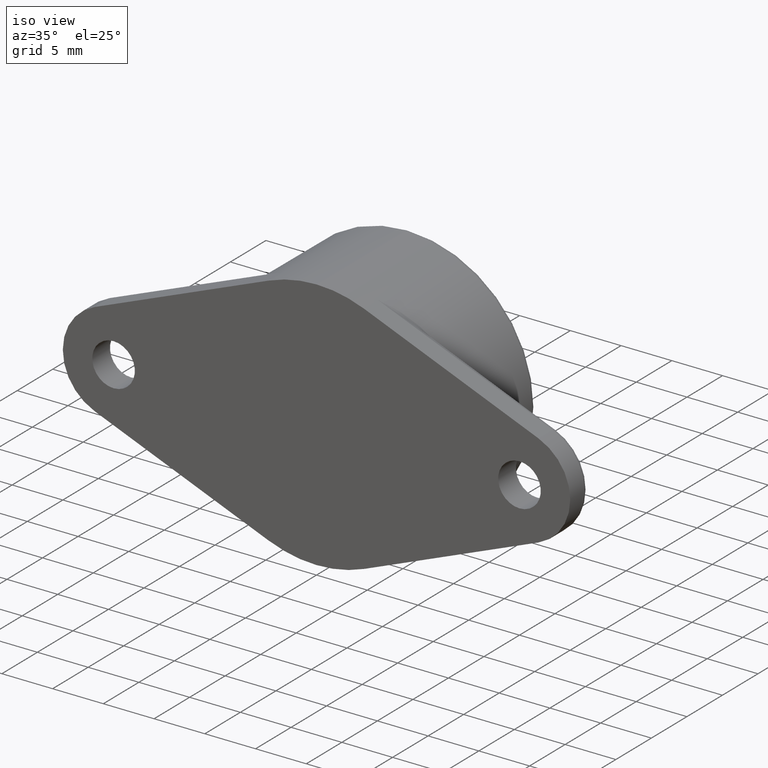
[diagram: clean part render]
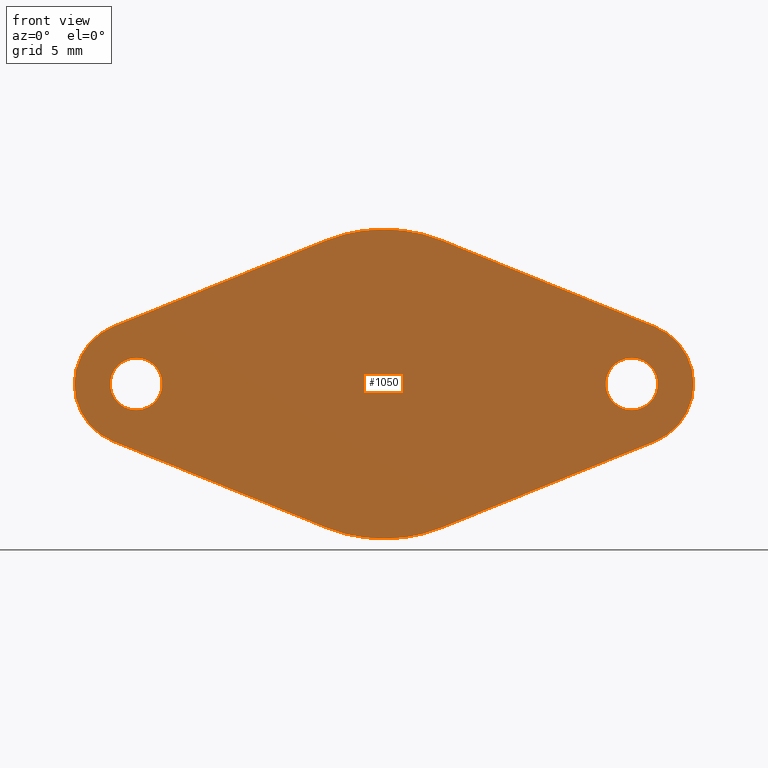
[diagram: tour spotlight — one face highlighted and labeled with its STEP entity id]
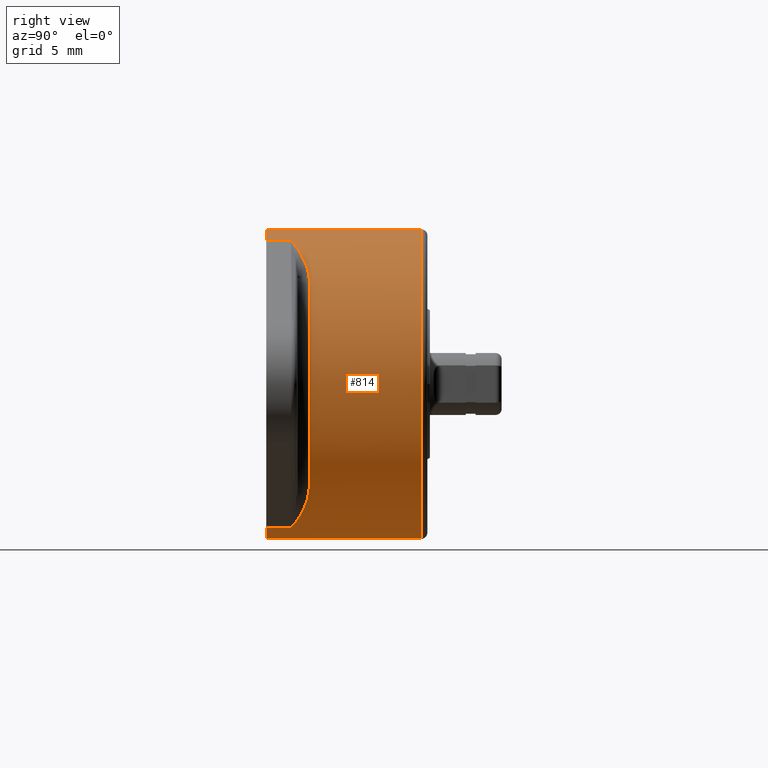
[diagram: tour spotlight — one face highlighted and labeled with its STEP entity id]
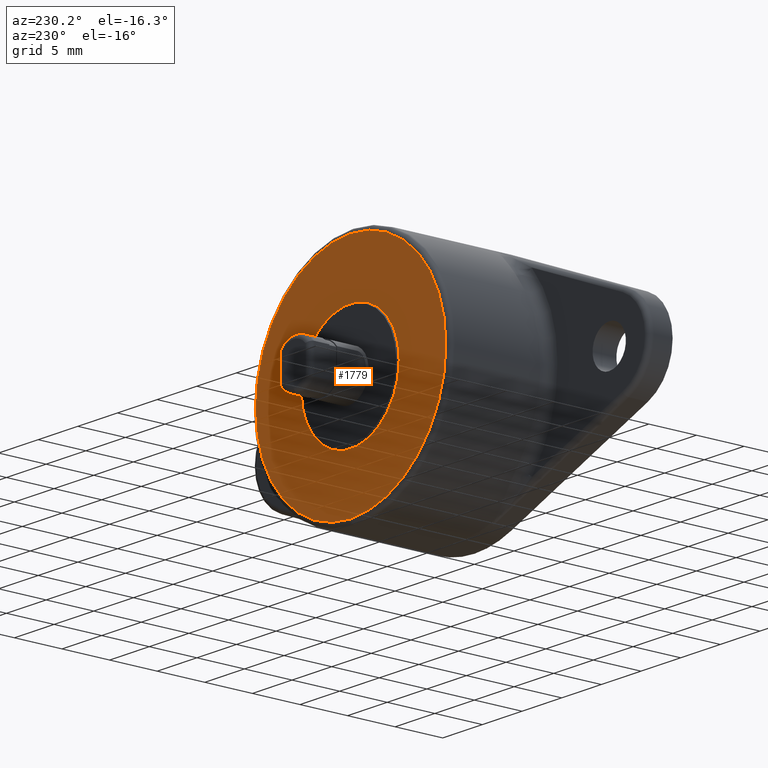
[diagram: tour spotlight — one face highlighted and labeled with its STEP entity id]
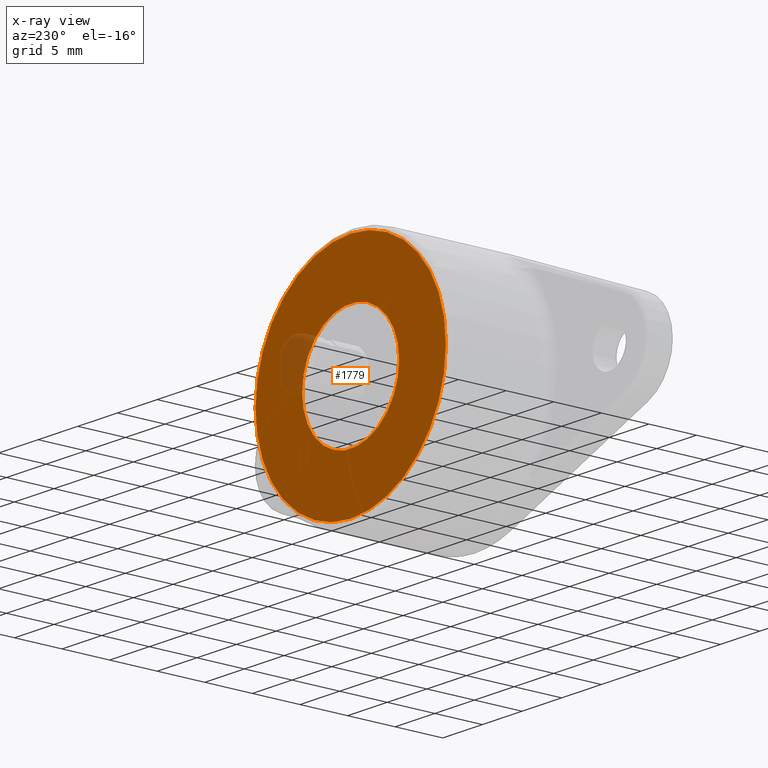
[diagram: x-ray of the same camera — body ghosted, this tour face saturated]
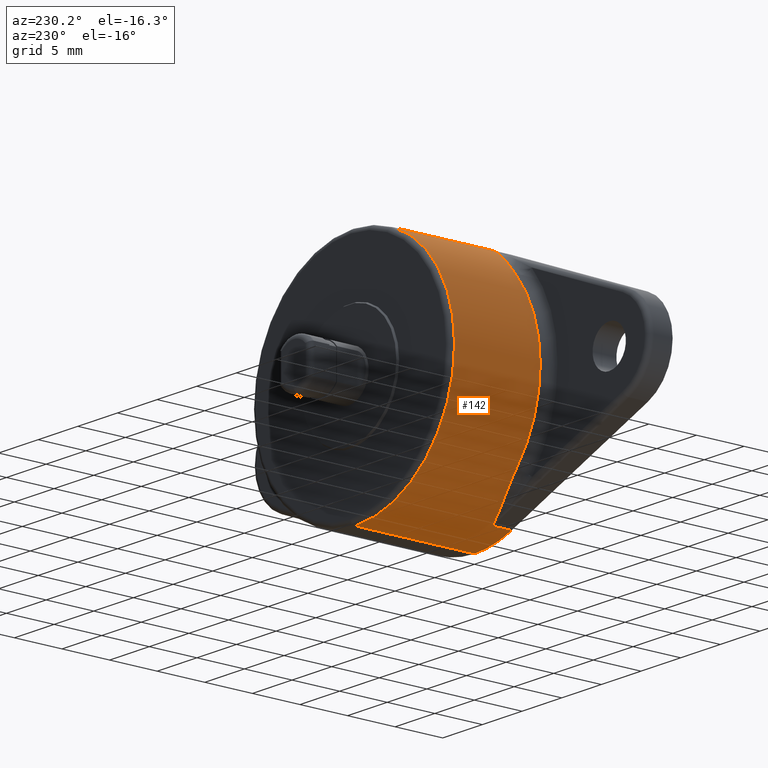
[diagram: tour spotlight — one face highlighted and labeled with its STEP entity id]
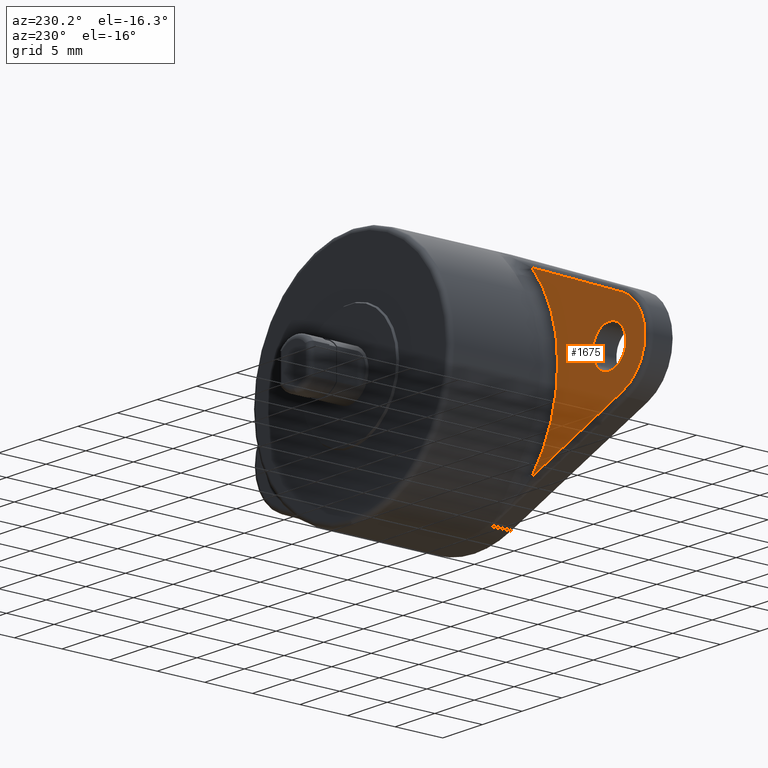
[diagram: tour spotlight — one face highlighted and labeled with its STEP entity id]
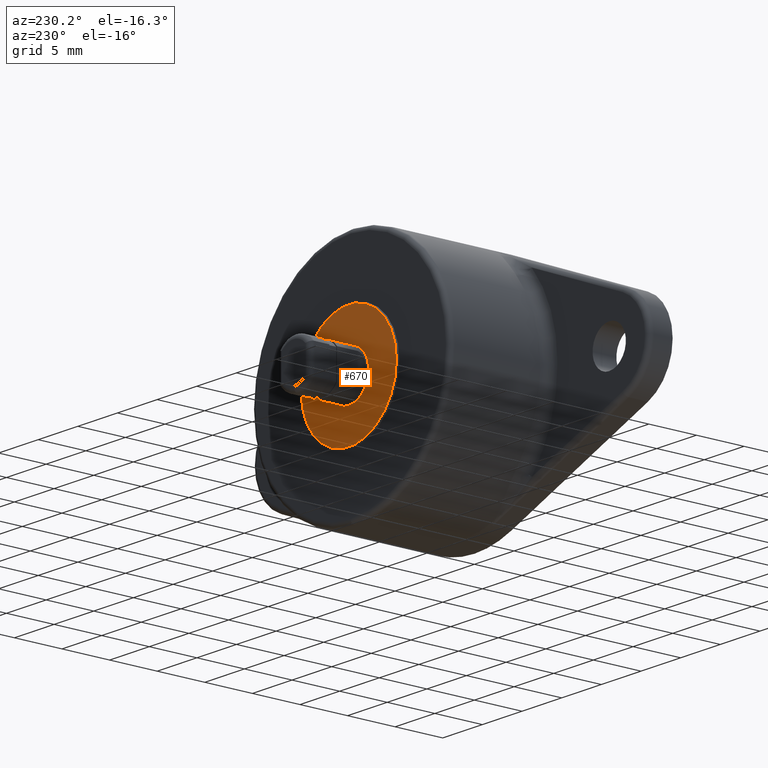
[diagram: tour spotlight — one face highlighted and labeled with its STEP entity id]
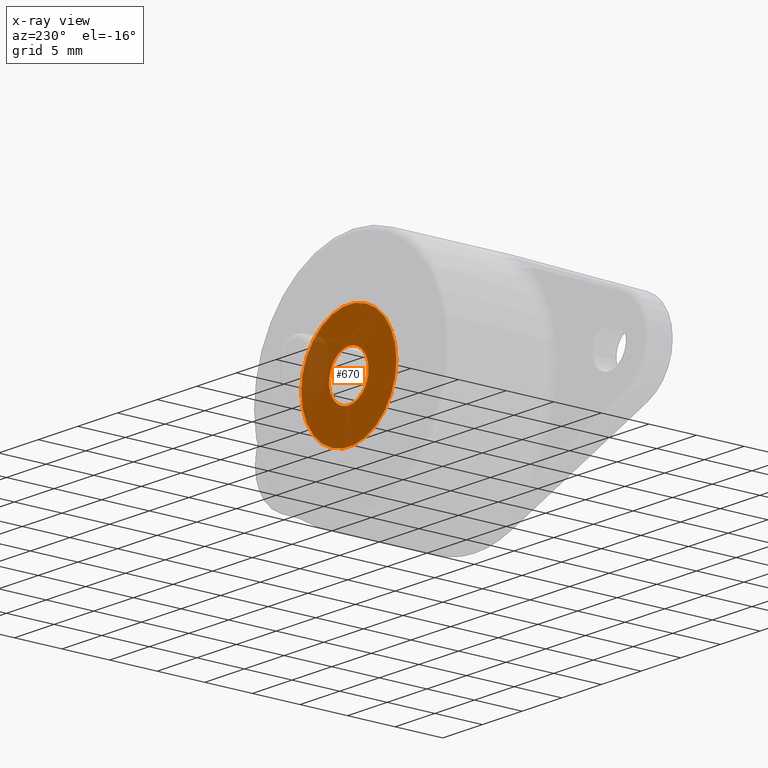
[diagram: x-ray of the same camera — body ghosted, this tour face saturated]
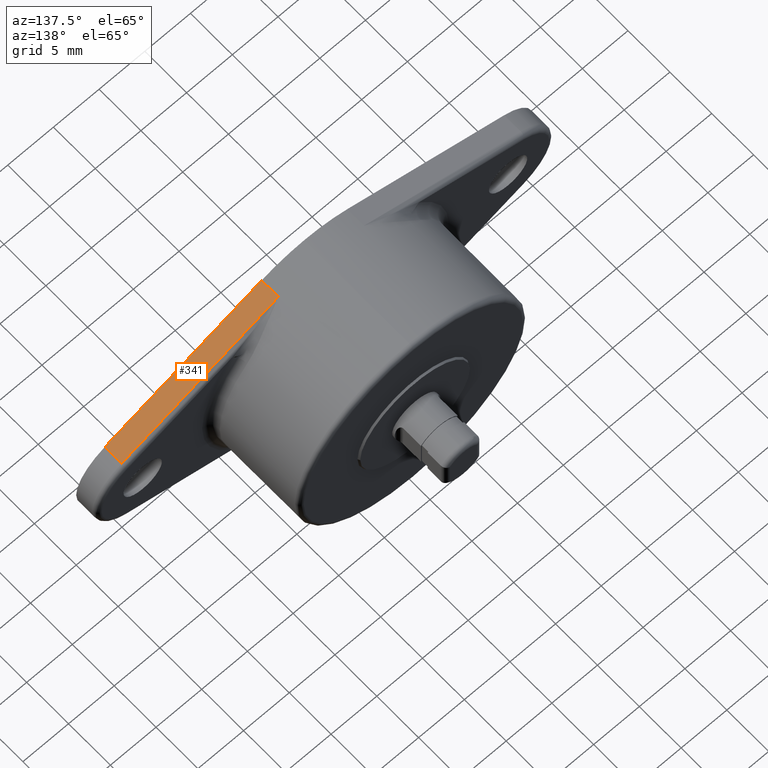
[diagram: tour spotlight — one face highlighted and labeled with its STEP entity id]
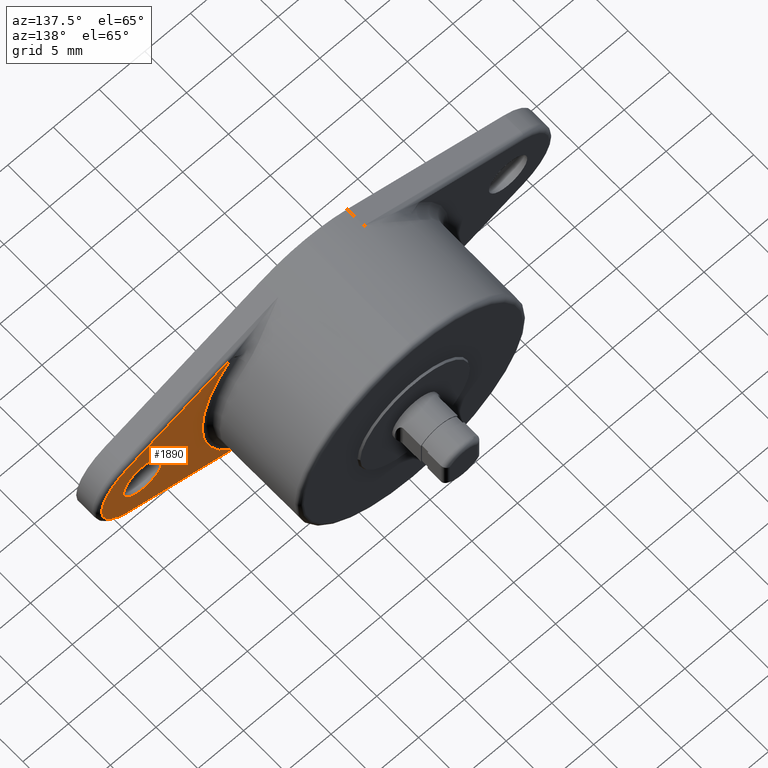
[diagram: tour spotlight — one face highlighted and labeled with its STEP entity id]
A machine part: a face-by-face anatomy tour. The part has 59 B-rep faces; the first image is the clean iso view, then the 8 largest visible faces are spotlighted one at a time (largest first), each with its STEP entity span.

Face 1 — front view, entity #1050. In plain terms, the highlighted planar face has unit normal (-0, 1, 0).
Definition (entity closure, byte-faithful):
#1 = CARTESIAN_POINT ( 'NONE',  ( -4.687500000031076500, 4.336808689942017700E-016, -11.58781013600035000 ) ) ;
#9 = CARTESIAN_POINT ( 'NONE',  ( 21.87500000004672200, 4.336808689942017700E-016, -4.635124053996904100 ) ) ;
#32 = CARTESIAN_POINT ( 'NONE',  ( -20.00000000000000000, -1.298125607096191200E-015, -0.0000000000000000000 ) ) ;
#35 = ORIENTED_EDGE ( 'NONE', *, *, #865, .F. ) ;
#71 = CARTESIAN_POINT ( 'NONE',  ( -20.00000000000000000, -1.298125607096191200E-015, 2.099999999999987200 ) ) ;
#101 = AXIS2_PLACEMENT_3D ( 'NONE', #1189, #271, #1348 ) ;
#103 = DIRECTION ( 'NONE',  ( 0.0000000000000000000, 0.0000000000000000000, 1.000000000000000000 ) ) ;
#158 = AXIS2_PLACEMENT_3D ( 'NONE', #1077, #165, #1235 ) ;
#164 = ORIENTED_EDGE ( 'NONE', *, *, #1474, .T. ) ;
#165 = DIRECTION ( 'NONE',  ( 0.0000000000000000000, -1.000000000000000000, 0.0000000000000000000 ) ) ;
#184 = DIRECTION ( 'NONE',  ( 0.0000000000000000000, -1.000000000000000000, 0.0000000000000000000 ) ) ;
#192 = DIRECTION ( 'NONE',  ( 0.0000000000000000000, 0.0000000000000000000, -1.000000000000000000 ) ) ;
#202 = AXIS2_PLACEMENT_3D ( 'NONE', #1093, #184, #1256 ) ;
#216 = CIRCLE ( 'NONE', #505, 12.49999999996701300 ) ;
#221 = EDGE_LOOP ( 'NONE', ( #1993, #599, #252, #733, #1629, #935, #1774, #164, #1898, #1952 ) ) ;
#222 = EDGE_LOOP ( 'NONE', ( #421, #35 ) ) ;
#241 = CARTESIAN_POINT ( 'NONE',  ( 20.00000000006817700, 4.336808689942017700E-016, 1.239813550230149600E-010 ) ) ;
#252 = ORIENTED_EDGE ( 'NONE', *, *, #1062, .T. ) ;
#271 = DIRECTION ( 'NONE',  ( 0.0000000000000000000, -1.000000000000000000, 0.0000000000000000000 ) ) ;
#282 = CARTESIAN_POINT ( 'NONE',  ( 20.00000000000000000, 4.336808689942017700E-016, 2.099999999999987200 ) ) ;
#293 = CIRCLE ( 'NONE', #1681, 4.999999999700959200 ) ;
#295 = EDGE_CURVE ( 'NONE', #918, #1637, #1834, .T. ) ;
#334 = CIRCLE ( 'NONE', #873, 12.49999999996701300 ) ;
#340 = DIRECTION ( 'NONE',  ( -0.0000000000000000000, 1.000000000000000000, -0.0000000000000000000 ) ) ;
#345 = CARTESIAN_POINT ( 'NONE',  ( -21.87499999993954000, 4.336808689942017700E-016, 4.635124054024458900 ) ) ;
#353 = EDGE_CURVE ( 'NONE', #1931, #1143, #611, .T. ) ;
#386 = DIRECTION ( 'NONE',  ( 0.0000000000000000000, 0.0000000000000000000, 1.000000000000000000 ) ) ;
#387 = VERTEX_POINT ( 'NONE', #1086 ) ;
#397 = EDGE_CURVE ( 'NONE', #780, #881, #515, .T. ) ;
#421 = ORIENTED_EDGE ( 'NONE', *, *, #511, .F. ) ;
#449 = EDGE_CURVE ( 'NONE', #547, #831, #1943, .T. ) ;
#501 = AXIS2_PLACEMENT_3D ( 'NONE', #1761, #836, #1906 ) ;
#505 = AXIS2_PLACEMENT_3D ( 'NONE', #509, #1590, #667 ) ;
#509 = CARTESIAN_POINT ( 'NONE',  ( 5.731678153250968000E-011, 4.336808689942017700E-016, 1.528555497919056500E-011 ) ) ;
#511 = EDGE_CURVE ( 'NONE', #387, #887, #725, .T. ) ;
#515 = CIRCLE ( 'NONE', #202, 4.999999999697704000 ) ;
#529 = VECTOR ( 'NONE', #1427, 1000.000000000000100 ) ;
#530 = CARTESIAN_POINT ( 'NONE',  ( -21.87499999988915500, 4.336808689942017700E-016, -4.635124054231659400 ) ) ;
#533 = CARTESIAN_POINT ( 'NONE',  ( 4.059162673905238300E-023, 4.336808689942017700E-016, 12.49999999998230000 ) ) ;
#547 = VERTEX_POINT ( 'NONE', #1265 ) ;
#566 = PLANE ( 'NONE',  #980 ) ;
#568 = VECTOR ( 'NONE', #928, 1000.000000000000100 ) ;
#595 = DIRECTION ( 'NONE',  ( -0.0000000000000000000, 1.000000000000000000, -0.0000000000000000000 ) ) ;
#599 = ORIENTED_EDGE ( 'NONE', *, *, #449, .T. ) ;
#609 = EDGE_CURVE ( 'NONE', #1637, #918, #875, .T. ) ;
#611 = LINE ( 'NONE', #9, #568 ) ;
#626 = EDGE_LOOP ( 'NONE', ( #770, #713 ) ) ;
#644 = CARTESIAN_POINT ( 'NONE',  ( 4.687500000145703900, 4.336808689942017700E-016, 11.58781013603092100 ) ) ;
#667 = DIRECTION ( 'NONE',  ( 0.0000000000000000000, 0.0000000000000000000, 1.000000000000000000 ) ) ;
#713 = ORIENTED_EDGE ( 'NONE', *, *, #295, .T. ) ;
#720 = AXIS2_PLACEMENT_3D ( 'NONE', #1266, #340, #1424 ) ;
#725 = CIRCLE ( 'NONE', #1893, 2.099999999999987200 ) ;
#733 = ORIENTED_EDGE ( 'NONE', *, *, #1874, .T. ) ;
#749 = FACE_BOUND ( 'NONE', #222, .T. ) ;
#770 = ORIENTED_EDGE ( 'NONE', *, *, #609, .T. ) ;
#778 = DIRECTION ( 'NONE',  ( 0.9270248108836969300, -0.0000000000000000000, -0.3750000000080612200 ) ) ;
#780 = VERTEX_POINT ( 'NONE', #922 ) ;
#807 = EDGE_CURVE ( 'NONE', #1346, #1931, #1813, .T. ) ;
#831 = VERTEX_POINT ( 'NONE', #644 ) ;
#836 = DIRECTION ( 'NONE',  ( -0.0000000000000000000, -1.000000000000000000, -0.0000000000000000000 ) ) ;
#844 = DIRECTION ( 'NONE',  ( -0.9270248108836971500, -0.0000000000000000000, 0.3750000000080608900 ) ) ;
#865 = EDGE_CURVE ( 'NONE', #887, #387, #1373, .T. ) ;
#866 = VECTOR ( 'NONE', #778, 1000.000000000000100 ) ;
#869 = DIRECTION ( 'NONE',  ( 0.0000000000000000000, -1.000000000000000000, 0.0000000000000000000 ) ) ;
#873 = AXIS2_PLACEMENT_3D ( 'NONE', #1794, #869, #1940 ) ;
#875 = CIRCLE ( 'NONE', #720, 2.099999999999987200 ) ;
#881 = VERTEX_POINT ( 'NONE', #530 ) ;
#887 = VERTEX_POINT ( 'NONE', #71 ) ;
#903 = EDGE_CURVE ( 'NONE', #881, #1488, #1692, .T. ) ;
#918 = VERTEX_POINT ( 'NONE', #1560 ) ;
#922 = CARTESIAN_POINT ( 'NONE',  ( -21.87499999993954300, 4.336808689942017700E-016, 4.635124054024457200 ) ) ;
#928 = DIRECTION ( 'NONE',  ( 0.9270248108796209600, -0.0000000000000000000, 0.3750000000181373200 ) ) ;
#935 = ORIENTED_EDGE ( 'NONE', *, *, #397, .T. ) ;
#980 = AXIS2_PLACEMENT_3D ( 'NONE', #1933, #1021, #103 ) ;
#1021 = DIRECTION ( 'NONE',  ( -0.0000000000000000000, 1.000000000000000000, 0.0000000000000000000 ) ) ;
#1035 = CARTESIAN_POINT ( 'NONE',  ( -4.687500000031075600, 4.336808689942017700E-016, -11.58781013600035000 ) ) ;
#1050 = ADVANCED_FACE ( 'NONE', ( #749, #1200, #1968 ), #566, .F. ) ;
#1062 = EDGE_CURVE ( 'NONE', #831, #1389, #334, .T. ) ;
#1077 = CARTESIAN_POINT ( 'NONE',  ( 5.731678153250968000E-011, 4.336808689942017700E-016, 1.528555497919056500E-011 ) ) ;
#1086 = CARTESIAN_POINT ( 'NONE',  ( -20.00000000000000000, -1.298125607096191200E-015, -2.099999999999987200 ) ) ;
#1093 = CARTESIAN_POINT ( 'NONE',  ( -19.99999999996221300, 4.336808689942017700E-016, -9.341074212250288200E-011 ) ) ;
#1099 = DIRECTION ( 'NONE',  ( -0.0000000000000000000, -1.000000000000000000, -0.0000000000000000000 ) ) ;
#1143 = VERTEX_POINT ( 'NONE', #1184 ) ;
#1159 = AXIS2_PLACEMENT_3D ( 'NONE', #1513, #595, #1672 ) ;
#1184 = CARTESIAN_POINT ( 'NONE',  ( 21.87500000004672200, 4.336808689942017700E-016, -4.635124053996904100 ) ) ;
#1189 = CARTESIAN_POINT ( 'NONE',  ( 5.731678153250968000E-011, 4.336808689942017700E-016, 1.528555497919056500E-011 ) ) ;
#1200 = FACE_BOUND ( 'NONE', #626, .T. ) ;
#1235 = DIRECTION ( 'NONE',  ( 0.0000000000000000000, 0.0000000000000000000, 1.000000000000000000 ) ) ;
#1256 = DIRECTION ( 'NONE',  ( 0.0000000000000000000, 0.0000000000000000000, 1.000000000000000000 ) ) ;
#1265 = CARTESIAN_POINT ( 'NONE',  ( 21.87499999999633700, 4.336808689942017700E-016, 4.635124054265249400 ) ) ;
#1266 = CARTESIAN_POINT ( 'NONE',  ( 20.00000000000000000, 4.336808689942017700E-016, 0.0000000000000000000 ) ) ;
#1314 = DIRECTION ( 'NONE',  ( 0.0000000000000000000, -1.000000000000000000, 0.0000000000000000000 ) ) ;
#1346 = VERTEX_POINT ( 'NONE', #1432 ) ;
#1348 = DIRECTION ( 'NONE',  ( 0.0000000000000000000, 0.0000000000000000000, 1.000000000000000000 ) ) ;
#1371 = CARTESIAN_POINT ( 'NONE',  ( -4.687500000157030800, 4.336808689942017700E-016, 11.58781013597997000 ) ) ;
#1373 = CIRCLE ( 'NONE', #501, 2.099999999999987200 ) ;
#1389 = VERTEX_POINT ( 'NONE', #533 ) ;
#1424 = DIRECTION ( 'NONE',  ( 0.0000000000000000000, 0.0000000000000000000, 1.000000000000000000 ) ) ;
#1427 = DIRECTION ( 'NONE',  ( -0.9270248108796208500, -0.0000000000000000000, -0.3750000000181374900 ) ) ;
#1432 = CARTESIAN_POINT ( 'NONE',  ( 1.530808609604747900E-015, 4.336808689942017700E-016, -12.49999999995173100 ) ) ;
#1457 = CIRCLE ( 'NONE', #101, 12.49999999996701700 ) ;
#1474 = EDGE_CURVE ( 'NONE', #1488, #1346, #1457, .T. ) ;
#1488 = VERTEX_POINT ( 'NONE', #1035 ) ;
#1513 = CARTESIAN_POINT ( 'NONE',  ( 20.00000000000000000, 4.336808689942017700E-016, 0.0000000000000000000 ) ) ;
#1539 = VECTOR ( 'NONE', #844, 999.9999999999998900 ) ;
#1560 = CARTESIAN_POINT ( 'NONE',  ( 20.00000000000000000, 4.336808689942017700E-016, -2.099999999999987200 ) ) ;
#1590 = DIRECTION ( 'NONE',  ( 0.0000000000000000000, -1.000000000000000000, 0.0000000000000000000 ) ) ;
#1629 = ORIENTED_EDGE ( 'NONE', *, *, #1889, .T. ) ;
#1637 = VERTEX_POINT ( 'NONE', #282 ) ;
#1638 = VERTEX_POINT ( 'NONE', #1371 ) ;
#1672 = DIRECTION ( 'NONE',  ( 0.0000000000000000000, 0.0000000000000000000, 1.000000000000000000 ) ) ;
#1681 = AXIS2_PLACEMENT_3D ( 'NONE', #241, #1314, #386 ) ;
#1692 = LINE ( 'NONE', #1, #866 ) ;
#1755 = LINE ( 'NONE', #345, #529 ) ;
#1761 = CARTESIAN_POINT ( 'NONE',  ( -20.00000000000000000, -1.298125607096191200E-015, -0.0000000000000000000 ) ) ;
#1764 = EDGE_CURVE ( 'NONE', #1143, #547, #293, .T. ) ;
#1768 = CARTESIAN_POINT ( 'NONE',  ( 4.687500000145708300, 4.336808689942017700E-016, 11.58781013603091900 ) ) ;
#1774 = ORIENTED_EDGE ( 'NONE', *, *, #903, .T. ) ;
#1794 = CARTESIAN_POINT ( 'NONE',  ( 5.731678153250968000E-011, 4.336808689942017700E-016, 1.528555497919056500E-011 ) ) ;
#1805 = CARTESIAN_POINT ( 'NONE',  ( 4.687500000271664500, 4.336808689942017700E-016, -11.58781013594939700 ) ) ;
#1813 = CIRCLE ( 'NONE', #158, 12.49999999996701700 ) ;
#1834 = CIRCLE ( 'NONE', #1159, 2.099999999999987200 ) ;
#1874 = EDGE_CURVE ( 'NONE', #1389, #1638, #216, .T. ) ;
#1889 = EDGE_CURVE ( 'NONE', #1638, #780, #1755, .T. ) ;
#1893 = AXIS2_PLACEMENT_3D ( 'NONE', #32, #1099, #192 ) ;
#1898 = ORIENTED_EDGE ( 'NONE', *, *, #807, .T. ) ;
#1906 = DIRECTION ( 'NONE',  ( 0.0000000000000000000, 0.0000000000000000000, -1.000000000000000000 ) ) ;
#1931 = VERTEX_POINT ( 'NONE', #1805 ) ;
#1933 = CARTESIAN_POINT ( 'NONE',  ( 20.00000000006817700, 4.336808689942017700E-016, 1.239813550230149600E-010 ) ) ;
#1940 = DIRECTION ( 'NONE',  ( 0.0000000000000000000, 0.0000000000000000000, 1.000000000000000000 ) ) ;
#1943 = LINE ( 'NONE', #1768, #1539 ) ;
#1952 = ORIENTED_EDGE ( 'NONE', *, *, #353, .T. ) ;
#1968 = FACE_OUTER_BOUND ( 'NONE', #221, .T. ) ;
#1993 = ORIENTED_EDGE ( 'NONE', *, *, #1764, .T. ) ;

Face 2 — right view, entity #814. In plain terms, the highlighted cylindrical surface (partial cylindrical patch) has radius 12.5 mm, axis along (0, 1, 0).
Definition (entity closure, byte-faithful):
#8 = DIRECTION ( 'NONE',  ( 0.0000000000000000000, 0.0000000000000000000, 1.000000000000000000 ) ) ;
#12 = CARTESIAN_POINT ( 'NONE',  ( 6.427084530534958000, 2.681744304901765700, 10.73209136513333200 ) ) ;
#25 = DIRECTION ( 'NONE',  ( 0.0000000000000000000, 0.0000000000000000000, -1.000000000000000000 ) ) ;
#34 = ORIENTED_EDGE ( 'NONE', *, *, #1214, .T. ) ;
#49 = B_SPLINE_CURVE_WITH_KNOTS ( 'NONE', 3,
 ( #1091, #181, #1249, #329, #1416, #493, #1573, #651, #1730, #800, #1872, #950 ),
 .UNSPECIFIED., .F., .F.,
 ( 4, 2, 2, 2, 2, 4 ),
 ( 0.0000000000000000000, 0.001534442496523214000, 0.003068884993046428100, 0.004603327489569641700, 0.005370548737831250300, 0.006137769986092858800 ),
 .UNSPECIFIED. ) ;
#92 = LINE ( 'NONE', #896, #1683 ) ;
#127 = ORIENTED_EDGE ( 'NONE', *, *, #253, .F. ) ;
#143 = ORIENTED_EDGE ( 'NONE', *, *, #948, .T. ) ;
#157 = EDGE_CURVE ( 'NONE', #268, #1186, #49, .T. ) ;
#158 = AXIS2_PLACEMENT_3D ( 'NONE', #1077, #165, #1235 ) ;
#165 = DIRECTION ( 'NONE',  ( 0.0000000000000000000, -1.000000000000000000, 0.0000000000000000000 ) ) ;
#167 = DIRECTION ( 'NONE',  ( -0.0000000000000000000, 1.000000000000000000, -0.0000000000000000000 ) ) ;
#169 = FACE_OUTER_BOUND ( 'NONE', #1192, .T. ) ;
#172 = CARTESIAN_POINT ( 'NONE',  ( 7.644251984308947800, 3.124751087807310600, 9.902463401373555700 ) ) ;
#181 = CARTESIAN_POINT ( 'NONE',  ( 9.136641159494068600, 3.499999999350175800, -8.546426462747547200 ) ) ;
#193 = AXIS2_PLACEMENT_3D ( 'NONE', #1868, #943, #25 ) ;
#253 = EDGE_CURVE ( 'NONE', #1389, #1904, #797, .T. ) ;
#255 = B_SPLINE_CURVE_WITH_KNOTS ( 'NONE', 3,
 ( #1233, #1076, #932, #12, #1084, #172, #1241, #322, #1410, #482 ),
 .UNSPECIFIED., .F., .F.,
 ( 4, 2, 2, 2, 4 ),
 ( -2.236231881433463000E-005, 0.001524403225599672500, 0.003071168770013680000, 0.004617934314427688500, 0.006164699858841698300 ),
 .UNSPECIFIED. ) ;
#268 = VERTEX_POINT ( 'NONE', #361 ) ;
#277 = ORIENTED_EDGE ( 'NONE', *, *, #1621, .F. ) ;
#303 = ORIENTED_EDGE ( 'NONE', *, *, #157, .T. ) ;
#322 = CARTESIAN_POINT ( 'NONE',  ( 8.781672652363916100, 3.437554897777337400, 8.909866123854600400 ) ) ;
#329 = CARTESIAN_POINT ( 'NONE',  ( 8.036597598728235400, 3.251249209459213100, -9.587314665117956400 ) ) ;
#334 = CIRCLE ( 'NONE', #873, 12.49999999996701300 ) ;
#359 = ORIENTED_EDGE ( 'NONE', *, *, #807, .F. ) ;
#361 = CARTESIAN_POINT ( 'NONE',  ( 9.475307240674911900, 3.499999999350175800, -8.152824829150544500 ) ) ;
#393 = AXIS2_PLACEMENT_3D ( 'NONE', #927, #1231, #8 ) ;
#444 = AXIS2_PLACEMENT_3D ( 'NONE', #1446, #167, #1237 ) ;
#482 = CARTESIAN_POINT ( 'NONE',  ( 9.475307240548938000, 3.499999999350175800, 8.152824829296955400 ) ) ;
#493 = CARTESIAN_POINT ( 'NONE',  ( 6.839986756715744900, 2.840204163859046300, -10.47415697399149100 ) ) ;
#533 = CARTESIAN_POINT ( 'NONE',  ( 4.059162673905238300E-023, 4.336808689942017700E-016, 12.49999999998230000 ) ) ;
#567 = LINE ( 'NONE', #1043, #1332 ) ;
#596 = DIRECTION ( 'NONE',  ( 0.0000000000000000000, 1.000000000000000000, 0.0000000000000000000 ) ) ;
#619 = CIRCLE ( 'NONE', #193, 12.50000000000000000 ) ;
#644 = CARTESIAN_POINT ( 'NONE',  ( 4.687500000145703900, 4.336808689942017700E-016, 11.58781013603092100 ) ) ;
#651 = CARTESIAN_POINT ( 'NONE',  ( 5.788839017454986200, 2.432353268260212300, -11.08143250493678000 ) ) ;
#754 = DIRECTION ( 'NONE',  ( -0.0000000000000000000, 1.000000000000000000, -0.0000000000000000000 ) ) ;
#779 = CARTESIAN_POINT ( 'NONE',  ( 4.687500000145703900, 1.999999999115181800, 11.58781013603092100 ) ) ;
#797 = LINE ( 'NONE', #986, #1101 ) ;
#799 = VERTEX_POINT ( 'NONE', #779 ) ;
#800 = CARTESIAN_POINT ( 'NONE',  ( 5.134652000155719900, 2.174676479670381000, -11.39930616751419000 ) ) ;
#807 = EDGE_CURVE ( 'NONE', #1346, #1931, #1813, .T. ) ;
#814 = ADVANCED_FACE ( 'NONE', ( #169 ), #1791, .T. ) ;
#831 = VERTEX_POINT ( 'NONE', #644 ) ;
#834 = CARTESIAN_POINT ( 'NONE',  ( 9.475307240548938000, 3.499999999350175800, 8.152824829296955400 ) ) ;
#851 = ORIENTED_EDGE ( 'NONE', *, *, #1814, .T. ) ;
#869 = DIRECTION ( 'NONE',  ( 0.0000000000000000000, -1.000000000000000000, 0.0000000000000000000 ) ) ;
#873 = AXIS2_PLACEMENT_3D ( 'NONE', #1794, #869, #1940 ) ;
#885 = CARTESIAN_POINT ( 'NONE',  ( 4.687500000271664500, 1.999999999115181800, -11.58781013594939700 ) ) ;
#896 = CARTESIAN_POINT ( 'NONE',  ( 4.687500000271664500, 4.336808689942017700E-016, -11.58781013594939700 ) ) ;
#927 = CARTESIAN_POINT ( 'NONE',  ( 0.0000000000000000000, 2.500000000000000400, 0.0000000000000000000 ) ) ;
#932 = CARTESIAN_POINT ( 'NONE',  ( 5.576248952205855100, 2.349285198940358500, 11.19779658036501300 ) ) ;
#943 = DIRECTION ( 'NONE',  ( -0.0000000000000000000, -1.000000000000000000, 0.0000000000000000000 ) ) ;
#948 = EDGE_CURVE ( 'NONE', #799, #1383, #255, .T. ) ;
#950 = CARTESIAN_POINT ( 'NONE',  ( 4.687500000271664500, 1.999999999115181800, -11.58781013594939700 ) ) ;
#986 = CARTESIAN_POINT ( 'NONE',  ( 0.0000000000000000000, 2.500000000000000400, 12.50000000000000000 ) ) ;
#1043 = CARTESIAN_POINT ( 'NONE',  ( 4.687500000145703900, 4.336808689942017700E-016, 11.58781013603092100 ) ) ;
#1062 = EDGE_CURVE ( 'NONE', #831, #1389, #334, .T. ) ;
#1076 = CARTESIAN_POINT ( 'NONE',  ( 5.137209978718527000, 2.174639494244315700, 11.40589349260219600 ) ) ;
#1077 = CARTESIAN_POINT ( 'NONE',  ( 5.731678153250968000E-011, 4.336808689942017700E-016, 1.528555497919056500E-011 ) ) ;
#1084 = CARTESIAN_POINT ( 'NONE',  ( 6.840070027020521700, 2.840235107815711300, 10.47410195866975400 ) ) ;
#1091 = CARTESIAN_POINT ( 'NONE',  ( 9.475307240674911900, 3.499999999350175800, -8.152824829150544500 ) ) ;
#1101 = VECTOR ( 'NONE', #596, 1000.000000000000000 ) ;
#1137 = VECTOR ( 'NONE', #1938, 1000.000000000000000 ) ;
#1179 = ORIENTED_EDGE ( 'NONE', *, *, #1429, .T. ) ;
#1186 = VERTEX_POINT ( 'NONE', #885 ) ;
#1192 = EDGE_LOOP ( 'NONE', ( #359, #1179, #851, #127, #1577, #34, #143, #1762, #303, #277 ) ) ;
#1199 = DIRECTION ( 'NONE',  ( -0.0000000000000000000, 1.000000000000000000, -0.0000000000000000000 ) ) ;
#1214 = EDGE_CURVE ( 'NONE', #831, #799, #567, .T. ) ;
#1222 = EDGE_CURVE ( 'NONE', #1383, #268, #1747, .T. ) ;
#1231 = DIRECTION ( 'NONE',  ( 0.0000000000000000000, 1.000000000000000000, 0.0000000000000000000 ) ) ;
#1233 = CARTESIAN_POINT ( 'NONE',  ( 4.687500000145703900, 1.999999999115181800, 11.58781013603092100 ) ) ;
#1235 = DIRECTION ( 'NONE',  ( 0.0000000000000000000, 0.0000000000000000000, 1.000000000000000000 ) ) ;
#1237 = DIRECTION ( 'NONE',  ( 0.0000000000000000000, 0.0000000000000000000, 1.000000000000000000 ) ) ;
#1241 = CARTESIAN_POINT ( 'NONE',  ( 8.036642027233519100, 3.251261999633225500, 9.587276664642155700 ) ) ;
#1249 = CARTESIAN_POINT ( 'NONE',  ( 8.781651966137300000, 3.437551405963058700, -8.909887327991704400 ) ) ;
#1269 = CARTESIAN_POINT ( 'NONE',  ( 0.0000000000000000000, 12.49999999911518200, 12.50000000000000000 ) ) ;
#1313 = VERTEX_POINT ( 'NONE', #1579 ) ;
#1332 = VECTOR ( 'NONE', #1199, 1000.000000000000000 ) ;
#1346 = VERTEX_POINT ( 'NONE', #1432 ) ;
#1383 = VERTEX_POINT ( 'NONE', #834 ) ;
#1389 = VERTEX_POINT ( 'NONE', #533 ) ;
#1410 = CARTESIAN_POINT ( 'NONE',  ( 9.136651025433229400, 3.499999999350174500, 8.546414996426726400 ) ) ;
#1416 = CARTESIAN_POINT ( 'NONE',  ( 7.644194685319386700, 3.124732298573310400, -9.902508306524977000 ) ) ;
#1429 = EDGE_CURVE ( 'NONE', #1346, #1313, #1545, .T. ) ;
#1432 = CARTESIAN_POINT ( 'NONE',  ( 1.530808609604747900E-015, 4.336808689942017700E-016, -12.49999999995173100 ) ) ;
#1446 = CARTESIAN_POINT ( 'NONE',  ( 0.0000000000000000000, 3.499999999350175800, 0.0000000000000000000 ) ) ;
#1545 = LINE ( 'NONE', #1867, #1137 ) ;
#1573 = CARTESIAN_POINT ( 'NONE',  ( 6.426987559110545900, 2.681706963872044500, -10.73215006608428500 ) ) ;
#1577 = ORIENTED_EDGE ( 'NONE', *, *, #1062, .F. ) ;
#1579 = CARTESIAN_POINT ( 'NONE',  ( 1.530808498934191100E-015, 12.49999999911518200, -12.50000000000000000 ) ) ;
#1621 = EDGE_CURVE ( 'NONE', #1931, #1186, #92, .T. ) ;
#1683 = VECTOR ( 'NONE', #754, 1000.000000000000000 ) ;
#1730 = CARTESIAN_POINT ( 'NONE',  ( 5.573011175847943500, 2.347238230865861000, -11.19153156173470600 ) ) ;
#1747 = CIRCLE ( 'NONE', #444, 12.50000000000000000 ) ;
#1762 = ORIENTED_EDGE ( 'NONE', *, *, #1222, .T. ) ;
#1791 = CYLINDRICAL_SURFACE ( 'NONE', #393, 12.50000000000000000 ) ;
#1794 = CARTESIAN_POINT ( 'NONE',  ( 5.731678153250968000E-011, 4.336808689942017700E-016, 1.528555497919056500E-011 ) ) ;
#1805 = CARTESIAN_POINT ( 'NONE',  ( 4.687500000271664500, 4.336808689942017700E-016, -11.58781013594939700 ) ) ;
#1813 = CIRCLE ( 'NONE', #158, 12.49999999996701700 ) ;
#1814 = EDGE_CURVE ( 'NONE', #1313, #1904, #619, .T. ) ;
#1867 = CARTESIAN_POINT ( 'NONE',  ( 1.530808498934191100E-015, 2.500000000000000400, -12.50000000000000000 ) ) ;
#1868 = CARTESIAN_POINT ( 'NONE',  ( 0.0000000000000000000, 12.49999999911518200, 0.0000000000000000000 ) ) ;
#1872 = CARTESIAN_POINT ( 'NONE',  ( 4.910563593623448900, 2.086624015306304700, -11.49757646959700900 ) ) ;
#1904 = VERTEX_POINT ( 'NONE', #1269 ) ;
#1931 = VERTEX_POINT ( 'NONE', #1805 ) ;
#1938 = DIRECTION ( 'NONE',  ( 0.0000000000000000000, 1.000000000000000000, 0.0000000000000000000 ) ) ;
#1940 = DIRECTION ( 'NONE',  ( 0.0000000000000000000, 0.0000000000000000000, 1.000000000000000000 ) ) ;

Face 3 — auxiliary view, entity #1779. An x-ray twin of the same camera follows (body ghosted, this face saturated) — the face is partly hidden behind the body. In plain terms, the highlighted planar face has unit normal (0, -1, 0).
Definition (entity closure, byte-faithful):
#20 = VERTEX_POINT ( 'NONE', #366 ) ;
#31 = VERTEX_POINT ( 'NONE', #546 ) ;
#96 = CARTESIAN_POINT ( 'NONE',  ( -6.115470053999999300, 13.00000000000000200, 7.489290826912590200E-016 ) ) ;
#215 = ORIENTED_EDGE ( 'NONE', *, *, #1115, .T. ) ;
#226 = DIRECTION ( 'NONE',  ( -0.0000000000000000000, -1.000000000000000000, 0.0000000000000000000 ) ) ;
#284 = AXIS2_PLACEMENT_3D ( 'NONE', #1152, #554, #1631 ) ;
#326 = CARTESIAN_POINT ( 'NONE',  ( 1.500192328901328400E-015, 13.00000000000000200, 11.99999999911518200 ) ) ;
#366 = CARTESIAN_POINT ( 'NONE',  ( 0.0000000000000000000, 13.00000000000000200, -11.99999999911518200 ) ) ;
#414 = ORIENTED_EDGE ( 'NONE', *, *, #870, .T. ) ;
#546 = CARTESIAN_POINT ( 'NONE',  ( 6.115470053999999300, 13.00000000000000200, 0.0000000000000000000 ) ) ;
#554 = DIRECTION ( 'NONE',  ( 0.0000000000000000000, -1.000000000000000000, 0.0000000000000000000 ) ) ;
#564 = CIRCLE ( 'NONE', #603, 6.115470053999999300 ) ;
#603 = AXIS2_PLACEMENT_3D ( 'NONE', #1140, #226, #1300 ) ;
#605 = EDGE_LOOP ( 'NONE', ( #414, #1011 ) ) ;
#706 = CIRCLE ( 'NONE', #1176, 11.99999999911518200 ) ;
#726 = DIRECTION ( 'NONE',  ( 0.0000000000000000000, 1.000000000000000000, -0.0000000000000000000 ) ) ;
#728 = CIRCLE ( 'NONE', #1787, 11.99999999911518200 ) ;
#738 = CARTESIAN_POINT ( 'NONE',  ( 0.0000000000000000000, 13.00000000000000200, -5.393209442195900500E-016 ) ) ;
#838 = CIRCLE ( 'NONE', #906, 6.115470053999999300 ) ;
#847 = PLANE ( 'NONE',  #284 ) ;
#870 = EDGE_CURVE ( 'NONE', #31, #1030, #564, .T. ) ;
#876 = DIRECTION ( 'NONE',  ( 0.0000000000000000000, 1.000000000000000000, -0.0000000000000000000 ) ) ;
#886 = DIRECTION ( 'NONE',  ( 0.0000000000000000000, 0.0000000000000000000, -1.000000000000000000 ) ) ;
#906 = AXIS2_PLACEMENT_3D ( 'NONE', #738, #1816, #886 ) ;
#1011 = ORIENTED_EDGE ( 'NONE', *, *, #1984, .T. ) ;
#1030 = VERTEX_POINT ( 'NONE', #96 ) ;
#1111 = ORIENTED_EDGE ( 'NONE', *, *, #1448, .T. ) ;
#1115 = EDGE_CURVE ( 'NONE', #20, #1724, #706, .T. ) ;
#1116 = FACE_OUTER_BOUND ( 'NONE', #1248, .T. ) ;
#1140 = CARTESIAN_POINT ( 'NONE',  ( 0.0000000000000000000, 13.00000000000000200, -5.393209442195900500E-016 ) ) ;
#1152 = CARTESIAN_POINT ( 'NONE',  ( 0.0000000000000000000, 13.00000000000000200, 0.0000000000000000000 ) ) ;
#1176 = AXIS2_PLACEMENT_3D ( 'NONE', #1651, #726, #1802 ) ;
#1248 = EDGE_LOOP ( 'NONE', ( #215, #1111 ) ) ;
#1300 = DIRECTION ( 'NONE',  ( 0.0000000000000000000, 0.0000000000000000000, -1.000000000000000000 ) ) ;
#1448 = EDGE_CURVE ( 'NONE', #1724, #20, #728, .T. ) ;
#1483 = FACE_BOUND ( 'NONE', #605, .T. ) ;
#1631 = DIRECTION ( 'NONE',  ( 0.0000000000000000000, -0.0000000000000000000, -1.000000000000000000 ) ) ;
#1651 = CARTESIAN_POINT ( 'NONE',  ( 0.0000000000000000000, 13.00000000000000200, 0.0000000000000000000 ) ) ;
#1724 = VERTEX_POINT ( 'NONE', #326 ) ;
#1779 = ADVANCED_FACE ( 'NONE', ( #1116, #1483 ), #847, .F. ) ;
#1787 = AXIS2_PLACEMENT_3D ( 'NONE', #1800, #876, #1946 ) ;
#1800 = CARTESIAN_POINT ( 'NONE',  ( 0.0000000000000000000, 13.00000000000000200, 0.0000000000000000000 ) ) ;
#1802 = DIRECTION ( 'NONE',  ( 0.0000000000000000000, 0.0000000000000000000, -1.000000000000000000 ) ) ;
#1816 = DIRECTION ( 'NONE',  ( -0.0000000000000000000, -1.000000000000000000, 0.0000000000000000000 ) ) ;
#1946 = DIRECTION ( 'NONE',  ( 0.0000000000000000000, 0.0000000000000000000, -1.000000000000000000 ) ) ;
#1984 = EDGE_CURVE ( 'NONE', #1030, #31, #838, .T. ) ;

Face 4 — auxiliary view, entity #142. In plain terms, the highlighted cylindrical surface (partial cylindrical patch) has radius 12.5 mm, axis along (0, 1, 0).
Definition (entity closure, byte-faithful):
#19 = AXIS2_PLACEMENT_3D ( 'NONE', #318, #1776, #1625 ) ;
#29 = CARTESIAN_POINT ( 'NONE',  ( -8.036642027313094500, 3.251261999609716700, -9.587276664575956200 ) ) ;
#79 = ORIENTED_EDGE ( 'NONE', *, *, #1307, .T. ) ;
#97 = EDGE_LOOP ( 'NONE', ( #1522, #1881, #1865, #79, #1661, #244, #630, #355, #417, #856 ) ) ;
#101 = AXIS2_PLACEMENT_3D ( 'NONE', #1189, #271, #1348 ) ;
#123 = EDGE_CURVE ( 'NONE', #1158, #590, #717, .T. ) ;
#139 = VERTEX_POINT ( 'NONE', #478 ) ;
#142 = ADVANCED_FACE ( 'NONE', ( #889 ), #1633, .T. ) ;
#147 = CARTESIAN_POINT ( 'NONE',  ( -6.839986756730851000, 2.840204163843532000, 10.47415697398165500 ) ) ;
#153 = CARTESIAN_POINT ( 'NONE',  ( -4.687500000157030800, 4.336808689942017700E-016, 11.58781013597997000 ) ) ;
#188 = CARTESIAN_POINT ( 'NONE',  ( -9.136651025524452400, 3.499999999350175800, -8.546414996329886500 ) ) ;
#216 = CIRCLE ( 'NONE', #505, 12.49999999996701300 ) ;
#244 = ORIENTED_EDGE ( 'NONE', *, *, #1659, .T. ) ;
#253 = EDGE_CURVE ( 'NONE', #1389, #1904, #797, .T. ) ;
#271 = DIRECTION ( 'NONE',  ( 0.0000000000000000000, -1.000000000000000000, 0.0000000000000000000 ) ) ;
#297 = CARTESIAN_POINT ( 'NONE',  ( -5.788839017474495000, 2.432353268220545300, 11.08143250492655900 ) ) ;
#301 = CIRCLE ( 'NONE', #1792, 12.50000000000000000 ) ;
#304 = B_SPLINE_CURVE_WITH_KNOTS ( 'NONE', 3,
 ( #452, #1529, #912, #1986, #1059, #147, #1217, #297, #1382, #457, #1534, #621 ),
 .UNSPECIFIED., .F., .F.,
 ( 4, 2, 2, 2, 2, 4 ),
 ( 0.0000000000000000000, 0.001534442496529847200, 0.003068884993059694400, 0.004603327489589541600, 0.005370548737854463500, 0.006137769986119386200 ),
 .UNSPECIFIED. ) ;
#318 = CARTESIAN_POINT ( 'NONE',  ( 0.0000000000000000000, 2.500000000000000400, 0.0000000000000000000 ) ) ;
#355 = ORIENTED_EDGE ( 'NONE', *, *, #1874, .F. ) ;
#379 = DIRECTION ( 'NONE',  ( -0.0000000000000000000, 1.000000000000000000, -0.0000000000000000000 ) ) ;
#417 = ORIENTED_EDGE ( 'NONE', *, *, #253, .T. ) ;
#452 = CARTESIAN_POINT ( 'NONE',  ( -9.475307240694228000, 3.499999999350175800, 8.152824829128096700 ) ) ;
#457 = CARTESIAN_POINT ( 'NONE',  ( -5.134652000190825100, 2.174676479573006500, 11.39930616749821700 ) ) ;
#476 = CARTESIAN_POINT ( 'NONE',  ( -5.137210074936607600, 2.174639205950466000, -11.40589345368007000 ) ) ;
#478 = CARTESIAN_POINT ( 'NONE',  ( -4.687500000031075600, 1.999999999115181800, -11.58781013600035000 ) ) ;
#505 = AXIS2_PLACEMENT_3D ( 'NONE', #509, #1590, #667 ) ;
#506 = EDGE_CURVE ( 'NONE', #1904, #1313, #301, .T. ) ;
#509 = CARTESIAN_POINT ( 'NONE',  ( 5.731678153250968000E-011, 4.336808689942017700E-016, 1.528555497919056500E-011 ) ) ;
#533 = CARTESIAN_POINT ( 'NONE',  ( 4.059162673905238300E-023, 4.336808689942017700E-016, 12.49999999998230000 ) ) ;
#543 = CARTESIAN_POINT ( 'NONE',  ( -4.687500000031075600, 4.336808689942017700E-016, -11.58781013600035000 ) ) ;
#582 = LINE ( 'NONE', #153, #1486 ) ;
#587 = EDGE_CURVE ( 'NONE', #1638, #1680, #582, .T. ) ;
#590 = VERTEX_POINT ( 'NONE', #773 ) ;
#596 = DIRECTION ( 'NONE',  ( 0.0000000000000000000, 1.000000000000000000, 0.0000000000000000000 ) ) ;
#621 = CARTESIAN_POINT ( 'NONE',  ( -4.687500000157030800, 1.999999999115181800, 11.58781013597997000 ) ) ;
#630 = ORIENTED_EDGE ( 'NONE', *, *, #587, .F. ) ;
#652 = CARTESIAN_POINT ( 'NONE',  ( 0.0000000000000000000, 12.49999999911518200, 0.0000000000000000000 ) ) ;
#667 = DIRECTION ( 'NONE',  ( 0.0000000000000000000, 0.0000000000000000000, 1.000000000000000000 ) ) ;
#715 = LINE ( 'NONE', #543, #1892 ) ;
#717 = CIRCLE ( 'NONE', #1388, 12.50000000000000000 ) ;
#773 = CARTESIAN_POINT ( 'NONE',  ( -9.475307240694228000, 3.499999999350175800, 8.152824829128096700 ) ) ;
#796 = CARTESIAN_POINT ( 'NONE',  ( -6.427084530607964500, 2.681744304806227100, -10.73209136508898500 ) ) ;
#797 = LINE ( 'NONE', #986, #1101 ) ;
#801 = DIRECTION ( 'NONE',  ( 0.0000000000000000000, 0.0000000000000000000, -1.000000000000000000 ) ) ;
#856 = ORIENTED_EDGE ( 'NONE', *, *, #506, .T. ) ;
#877 = CARTESIAN_POINT ( 'NONE',  ( -9.475307240642964100, 3.499999999350175800, -8.152824829187672200 ) ) ;
#889 = FACE_OUTER_BOUND ( 'NONE', #97, .T. ) ;
#912 = CARTESIAN_POINT ( 'NONE',  ( -8.781651966155363800, 3.437551405961991600, 8.909887327974013600 ) ) ;
#946 = CARTESIAN_POINT ( 'NONE',  ( -7.644251984383215500, 3.124751087770613700, -9.902463401316396100 ) ) ;
#986 = CARTESIAN_POINT ( 'NONE',  ( 0.0000000000000000000, 2.500000000000000400, 12.50000000000000000 ) ) ;
#1035 = CARTESIAN_POINT ( 'NONE',  ( -4.687500000031075600, 4.336808689942017700E-016, -11.58781013600035000 ) ) ;
#1059 = CARTESIAN_POINT ( 'NONE',  ( -7.644194685334747800, 3.124732298565812800, 9.902508306513151800 ) ) ;
#1089 = CARTESIAN_POINT ( 'NONE',  ( -4.687500000031075600, 1.999999999115181800, -11.58781013600035000 ) ) ;
#1096 = CARTESIAN_POINT ( 'NONE',  ( -8.781672652451664600, 3.437554897772097600, -8.909866123768658500 ) ) ;
#1101 = VECTOR ( 'NONE', #596, 1000.000000000000000 ) ;
#1137 = VECTOR ( 'NONE', #1938, 1000.000000000000000 ) ;
#1158 = VERTEX_POINT ( 'NONE', #877 ) ;
#1189 = CARTESIAN_POINT ( 'NONE',  ( 5.731678153250968000E-011, 4.336808689942017700E-016, 1.528555497919056500E-011 ) ) ;
#1217 = CARTESIAN_POINT ( 'NONE',  ( -6.426987559125717700, 2.681706963852501500, 10.73215006607506800 ) ) ;
#1260 = CARTESIAN_POINT ( 'NONE',  ( -9.475307240642964100, 3.499999999350175800, -8.152824829187672200 ) ) ;
#1269 = CARTESIAN_POINT ( 'NONE',  ( 0.0000000000000000000, 12.49999999911518200, 12.50000000000000000 ) ) ;
#1306 = CARTESIAN_POINT ( 'NONE',  ( 0.0000000000000000000, 3.499999999350175800, 0.0000000000000000000 ) ) ;
#1307 = EDGE_CURVE ( 'NONE', #139, #1158, #1476, .T. ) ;
#1313 = VERTEX_POINT ( 'NONE', #1579 ) ;
#1346 = VERTEX_POINT ( 'NONE', #1432 ) ;
#1348 = DIRECTION ( 'NONE',  ( 0.0000000000000000000, 0.0000000000000000000, 1.000000000000000000 ) ) ;
#1371 = CARTESIAN_POINT ( 'NONE',  ( -4.687500000157030800, 4.336808689942017700E-016, 11.58781013597997000 ) ) ;
#1382 = CARTESIAN_POINT ( 'NONE',  ( -5.573011175868901800, 2.347238230819480400, 11.19153156172410300 ) ) ;
#1388 = AXIS2_PLACEMENT_3D ( 'NONE', #1306, #379, #1463 ) ;
#1389 = VERTEX_POINT ( 'NONE', #533 ) ;
#1429 = EDGE_CURVE ( 'NONE', #1346, #1313, #1545, .T. ) ;
#1432 = CARTESIAN_POINT ( 'NONE',  ( 1.530808609604747900E-015, 4.336808689942017700E-016, -12.49999999995173100 ) ) ;
#1457 = CIRCLE ( 'NONE', #101, 12.49999999996701700 ) ;
#1463 = DIRECTION ( 'NONE',  ( 0.0000000000000000000, 0.0000000000000000000, 1.000000000000000000 ) ) ;
#1465 = DIRECTION ( 'NONE',  ( -0.0000000000000000000, 1.000000000000000000, -0.0000000000000000000 ) ) ;
#1474 = EDGE_CURVE ( 'NONE', #1488, #1346, #1457, .T. ) ;
#1476 = B_SPLINE_CURVE_WITH_KNOTS ( 'NONE', 3,
 ( #1089, #476, #1726, #796, #1870, #946, #29, #1096, #188, #1260 ),
 .UNSPECIFIED., .F., .F.,
 ( 4, 2, 2, 2, 4 ),
 ( -2.236231865374483300E-005, 0.001524403225779430200, 0.003071168770212605100, 0.004617934314645780500, 0.006164699859078955600 ),
 .UNSPECIFIED. ) ;
#1486 = VECTOR ( 'NONE', #1851, 1000.000000000000000 ) ;
#1488 = VERTEX_POINT ( 'NONE', #1035 ) ;
#1522 = ORIENTED_EDGE ( 'NONE', *, *, #1429, .F. ) ;
#1529 = CARTESIAN_POINT ( 'NONE',  ( -9.136641159512827000, 3.499999999350177100, 8.546426462727634300 ) ) ;
#1534 = CARTESIAN_POINT ( 'NONE',  ( -4.910563603423534000, 2.086623985944160000, 11.49757646563268000 ) ) ;
#1545 = LINE ( 'NONE', #1867, #1137 ) ;
#1579 = CARTESIAN_POINT ( 'NONE',  ( 1.530808498934191100E-015, 12.49999999911518200, -12.50000000000000000 ) ) ;
#1590 = DIRECTION ( 'NONE',  ( 0.0000000000000000000, -1.000000000000000000, 0.0000000000000000000 ) ) ;
#1625 = DIRECTION ( 'NONE',  ( 0.0000000000000000000, 0.0000000000000000000, 1.000000000000000000 ) ) ;
#1633 = CYLINDRICAL_SURFACE ( 'NONE', #19, 12.50000000000000000 ) ;
#1638 = VERTEX_POINT ( 'NONE', #1371 ) ;
#1659 = EDGE_CURVE ( 'NONE', #590, #1680, #304, .T. ) ;
#1661 = ORIENTED_EDGE ( 'NONE', *, *, #123, .T. ) ;
#1680 = VERTEX_POINT ( 'NONE', #1713 ) ;
#1713 = CARTESIAN_POINT ( 'NONE',  ( -4.687500000157030800, 1.999999999115181800, 11.58781013597997000 ) ) ;
#1726 = CARTESIAN_POINT ( 'NONE',  ( -5.576248952306774400, 2.349285198714062200, -11.19779658031416000 ) ) ;
#1731 = DIRECTION ( 'NONE',  ( -0.0000000000000000000, -1.000000000000000000, 0.0000000000000000000 ) ) ;
#1758 = EDGE_CURVE ( 'NONE', #1488, #139, #715, .T. ) ;
#1776 = DIRECTION ( 'NONE',  ( 0.0000000000000000000, 1.000000000000000000, 0.0000000000000000000 ) ) ;
#1792 = AXIS2_PLACEMENT_3D ( 'NONE', #652, #1731, #801 ) ;
#1851 = DIRECTION ( 'NONE',  ( -0.0000000000000000000, 1.000000000000000000, -0.0000000000000000000 ) ) ;
#1865 = ORIENTED_EDGE ( 'NONE', *, *, #1758, .T. ) ;
#1867 = CARTESIAN_POINT ( 'NONE',  ( 1.530808498934191100E-015, 2.500000000000000400, -12.50000000000000000 ) ) ;
#1870 = CARTESIAN_POINT ( 'NONE',  ( -6.840070027093337200, 2.840235107739875100, -10.47410195862235900 ) ) ;
#1874 = EDGE_CURVE ( 'NONE', #1389, #1638, #216, .T. ) ;
#1881 = ORIENTED_EDGE ( 'NONE', *, *, #1474, .F. ) ;
#1892 = VECTOR ( 'NONE', #1465, 1000.000000000000000 ) ;
#1904 = VERTEX_POINT ( 'NONE', #1269 ) ;
#1938 = DIRECTION ( 'NONE',  ( 0.0000000000000000000, 1.000000000000000000, 0.0000000000000000000 ) ) ;
#1986 = CARTESIAN_POINT ( 'NONE',  ( -8.036597598744661400, 3.251249209454410300, 9.587314665104290900 ) ) ;

Face 5 — auxiliary view, entity #1675. In plain terms, the highlighted planar face has unit normal (-0, 1, 0).
Definition (entity closure, byte-faithful):
#67 = EDGE_LOOP ( 'NONE', ( #1706, #1162 ) ) ;
#83 = CIRCLE ( 'NONE', #1528, 2.099999999999992500 ) ;
#105 = AXIS2_PLACEMENT_3D ( 'NONE', #1393, #462, #1544 ) ;
#225 = CIRCLE ( 'NONE', #105, 13.49999999935017700 ) ;
#273 = EDGE_CURVE ( 'NONE', #1773, #1558, #707, .T. ) ;
#274 = VECTOR ( 'NONE', #646, 999.9999999999998900 ) ;
#328 = EDGE_CURVE ( 'NONE', #1635, #1227, #1928, .T. ) ;
#382 = DIRECTION ( 'NONE',  ( 0.9270248108796208500, 0.0000000000000000000, 0.3750000000181374900 ) ) ;
#398 = VECTOR ( 'NONE', #382, 1000.000000000000100 ) ;
#413 = EDGE_LOOP ( 'NONE', ( #1942, #1253, #1105, #1088 ) ) ;
#437 = CARTESIAN_POINT ( 'NONE',  ( -21.68749999959866800, 2.500000000000000400, 4.171611647764398100 ) ) ;
#462 = DIRECTION ( 'NONE',  ( 0.0000000000000000000, -1.000000000000000000, 0.0000000000000000000 ) ) ;
#477 = DIRECTION ( 'NONE',  ( 0.0000000000000000000, 0.0000000000000000000, 1.000000000000000000 ) ) ;
#520 = DIRECTION ( 'NONE',  ( -0.0000000000000000000, 1.000000000000000000, -0.0000000000000000000 ) ) ;
#570 = EDGE_CURVE ( 'NONE', #1609, #1718, #225, .T. ) ;
#634 = DIRECTION ( 'NONE',  ( -0.0000000000000000000, 1.000000000000000000, -0.0000000000000000000 ) ) ;
#646 = DIRECTION ( 'NONE',  ( -0.9270248108836970400, -0.0000000000000000000, 0.3750000000080612200 ) ) ;
#707 = CIRCLE ( 'NONE', #858, 2.099999999999992500 ) ;
#712 = EDGE_CURVE ( 'NONE', #1718, #1635, #1910, .T. ) ;
#767 = CARTESIAN_POINT ( 'NONE',  ( 20.00000000006817700, 2.500000000000000400, 1.239813550230149600E-010 ) ) ;
#858 = AXIS2_PLACEMENT_3D ( 'NONE', #1829, #901, #1976 ) ;
#862 = FACE_BOUND ( 'NONE', #67, .T. ) ;
#901 = DIRECTION ( 'NONE',  ( -0.0000000000000000000, 1.000000000000000000, -0.0000000000000000000 ) ) ;
#1005 = CARTESIAN_POINT ( 'NONE',  ( -20.00000000000000000, 2.500000000000000400, -2.099999999999992500 ) ) ;
#1013 = EDGE_CURVE ( 'NONE', #1558, #1773, #83, .T. ) ;
#1088 = ORIENTED_EDGE ( 'NONE', *, *, #328, .T. ) ;
#1097 = CARTESIAN_POINT ( 'NONE',  ( -4.499999999816148000, 2.500000000000000400, 11.12429772971991100 ) ) ;
#1105 = ORIENTED_EDGE ( 'NONE', *, *, #712, .T. ) ;
#1162 = ORIENTED_EDGE ( 'NONE', *, *, #1013, .F. ) ;
#1203 = CARTESIAN_POINT ( 'NONE',  ( -10.23333181945717700, 2.500000000000000400, 8.805050815034514100 ) ) ;
#1227 = VERTEX_POINT ( 'NONE', #437 ) ;
#1247 = CARTESIAN_POINT ( 'NONE',  ( -10.23333181940181900, 2.500000000000000400, -8.805050815098855600 ) ) ;
#1253 = ORIENTED_EDGE ( 'NONE', *, *, #570, .T. ) ;
#1261 = FACE_OUTER_BOUND ( 'NONE', #413, .T. ) ;
#1360 = CARTESIAN_POINT ( 'NONE',  ( -20.00000000000000000, 2.500000000000000400, 2.099999999999992500 ) ) ;
#1364 = AXIS2_PLACEMENT_3D ( 'NONE', #767, #1759, #477 ) ;
#1393 = CARTESIAN_POINT ( 'NONE',  ( 0.0000000000000000000, 2.500000000000000400, 0.0000000000000000000 ) ) ;
#1439 = CARTESIAN_POINT ( 'NONE',  ( -20.00000000000000000, 2.500000000000000400, 0.0000000000000000000 ) ) ;
#1527 = LINE ( 'NONE', #1097, #398 ) ;
#1528 = AXIS2_PLACEMENT_3D ( 'NONE', #1439, #520, #1600 ) ;
#1544 = DIRECTION ( 'NONE',  ( 0.0000000000000000000, 0.0000000000000000000, 1.000000000000000000 ) ) ;
#1556 = CARTESIAN_POINT ( 'NONE',  ( -19.99999999996221300, 2.500000000000000400, -9.341074212250288200E-011 ) ) ;
#1558 = VERTEX_POINT ( 'NONE', #1360 ) ;
#1582 = AXIS2_PLACEMENT_3D ( 'NONE', #1556, #634, #1708 ) ;
#1600 = DIRECTION ( 'NONE',  ( 0.0000000000000000000, 0.0000000000000000000, 1.000000000000000000 ) ) ;
#1609 = VERTEX_POINT ( 'NONE', #1203 ) ;
#1635 = VERTEX_POINT ( 'NONE', #1827 ) ;
#1675 = ADVANCED_FACE ( 'NONE', ( #862, #1261 ), #1980, .T. ) ;
#1706 = ORIENTED_EDGE ( 'NONE', *, *, #273, .F. ) ;
#1708 = DIRECTION ( 'NONE',  ( 0.0000000000000000000, 0.0000000000000000000, 1.000000000000000000 ) ) ;
#1718 = VERTEX_POINT ( 'NONE', #1247 ) ;
#1744 = EDGE_CURVE ( 'NONE', #1227, #1609, #1527, .T. ) ;
#1759 = DIRECTION ( 'NONE',  ( -0.0000000000000000000, 1.000000000000000000, 0.0000000000000000000 ) ) ;
#1773 = VERTEX_POINT ( 'NONE', #1005 ) ;
#1827 = CARTESIAN_POINT ( 'NONE',  ( -21.68749999955332100, 2.500000000000000400, -4.171611647969560200 ) ) ;
#1829 = CARTESIAN_POINT ( 'NONE',  ( -20.00000000000000000, 2.500000000000000400, 0.0000000000000000000 ) ) ;
#1869 = CARTESIAN_POINT ( 'NONE',  ( -21.68749999955332100, 2.500000000000000400, -4.171611647969560200 ) ) ;
#1910 = LINE ( 'NONE', #1869, #274 ) ;
#1928 = CIRCLE ( 'NONE', #1582, 4.499999998812884700 ) ;
#1942 = ORIENTED_EDGE ( 'NONE', *, *, #1744, .T. ) ;
#1976 = DIRECTION ( 'NONE',  ( 0.0000000000000000000, 0.0000000000000000000, 1.000000000000000000 ) ) ;
#1980 = PLANE ( 'NONE',  #1364 ) ;

Face 6 — auxiliary view, entity #670. An x-ray twin of the same camera follows (body ghosted, this face saturated) — the face is partly hidden behind the body. In plain terms, the highlighted planar face has unit normal (0, -1, 0).
Definition (entity closure, byte-faithful):
#56 = PLANE ( 'NONE',  #1223 ) ;
#74 = VERTEX_POINT ( 'NONE', #1361 ) ;
#122 = DIRECTION ( 'NONE',  ( 0.0000000000000000000, 0.0000000000000000000, -1.000000000000000000 ) ) ;
#182 = CARTESIAN_POINT ( 'NONE',  ( 1.454478343412300000E-029, 13.20000000000010100, 0.0000000000000000000 ) ) ;
#332 = DIRECTION ( 'NONE',  ( 1.000000000000000000, 0.0000000000000000000, 0.0000000000000000000 ) ) ;
#333 = CARTESIAN_POINT ( 'NONE',  ( 3.061616997868383100E-016, 13.19999999999999900, 2.500000000000000000 ) ) ;
#356 = DIRECTION ( 'NONE',  ( 0.0000000000000000000, -1.000000000000000000, 0.0000000000000000000 ) ) ;
#376 = VERTEX_POINT ( 'NONE', #639 ) ;
#445 = DIRECTION ( 'NONE',  ( 1.445602896647339200E-016, 1.000000000000000000, -0.0000000000000000000 ) ) ;
#518 = CARTESIAN_POINT ( 'NONE',  ( -6.072000000000000100, 13.19999999999999900, 6.072000000000000100 ) ) ;
#612 = CARTESIAN_POINT ( 'NONE',  ( 0.0000000000000000000, 13.19999999999999900, 0.0000000000000000000 ) ) ;
#639 = CARTESIAN_POINT ( 'NONE',  ( 5.999999999999942300, 13.20000000000010100, 0.0000000000000000000 ) ) ;
#670 = ADVANCED_FACE ( 'NONE', ( #835, #1613 ), #56, .F. ) ;
#687 = CARTESIAN_POINT ( 'NONE',  ( 0.0000000000000000000, 13.19999999999999900, -2.500000000000000000 ) ) ;
#736 = VERTEX_POINT ( 'NONE', #333 ) ;
#759 = DIRECTION ( 'NONE',  ( 0.0000000000000000000, 0.0000000000000000000, -1.000000000000000000 ) ) ;
#824 = AXIS2_PLACEMENT_3D ( 'NONE', #1369, #445, #1518 ) ;
#835 = FACE_BOUND ( 'NONE', #1991, .T. ) ;
#843 = ORIENTED_EDGE ( 'NONE', *, *, #1652, .F. ) ;
#848 = ORIENTED_EDGE ( 'NONE', *, *, #1167, .F. ) ;
#854 = EDGE_LOOP ( 'NONE', ( #1415, #1809 ) ) ;
#878 = VERTEX_POINT ( 'NONE', #687 ) ;
#898 = CIRCLE ( 'NONE', #824, 5.999999999999942300 ) ;
#963 = EDGE_CURVE ( 'NONE', #74, #376, #1603, .T. ) ;
#1015 = AXIS2_PLACEMENT_3D ( 'NONE', #182, #1252, #332 ) ;
#1016 = CIRCLE ( 'NONE', #1391, 2.500000000000000000 ) ;
#1040 = DIRECTION ( 'NONE',  ( -0.0000000000000000000, 1.000000000000000000, -0.0000000000000000000 ) ) ;
#1167 = EDGE_CURVE ( 'NONE', #878, #736, #1016, .T. ) ;
#1223 = AXIS2_PLACEMENT_3D ( 'NONE', #518, #356, #1443 ) ;
#1252 = DIRECTION ( 'NONE',  ( 1.445602896647339200E-016, 1.000000000000000000, -0.0000000000000000000 ) ) ;
#1361 = CARTESIAN_POINT ( 'NONE',  ( -5.999999999999943200, 13.20000000000010100, 7.418585810898321000E-016 ) ) ;
#1369 = CARTESIAN_POINT ( 'NONE',  ( 1.454478343412300000E-029, 13.20000000000010100, 0.0000000000000000000 ) ) ;
#1391 = AXIS2_PLACEMENT_3D ( 'NONE', #1963, #1040, #122 ) ;
#1415 = ORIENTED_EDGE ( 'NONE', *, *, #1593, .T. ) ;
#1443 = DIRECTION ( 'NONE',  ( 0.0000000000000000000, 0.0000000000000000000, -1.000000000000000000 ) ) ;
#1518 = DIRECTION ( 'NONE',  ( 1.000000000000000000, 0.0000000000000000000, 0.0000000000000000000 ) ) ;
#1540 = AXIS2_PLACEMENT_3D ( 'NONE', #612, #1695, #759 ) ;
#1593 = EDGE_CURVE ( 'NONE', #376, #74, #898, .T. ) ;
#1603 = CIRCLE ( 'NONE', #1015, 5.999999999999942300 ) ;
#1613 = FACE_OUTER_BOUND ( 'NONE', #854, .T. ) ;
#1652 = EDGE_CURVE ( 'NONE', #736, #878, #1727, .T. ) ;
#1695 = DIRECTION ( 'NONE',  ( -0.0000000000000000000, 1.000000000000000000, -0.0000000000000000000 ) ) ;
#1727 = CIRCLE ( 'NONE', #1540, 2.500000000000000000 ) ;
#1809 = ORIENTED_EDGE ( 'NONE', *, *, #963, .T. ) ;
#1963 = CARTESIAN_POINT ( 'NONE',  ( 0.0000000000000000000, 13.19999999999999900, 0.0000000000000000000 ) ) ;
#1991 = EDGE_LOOP ( 'NONE', ( #848, #843 ) ) ;

Face 7 — auxiliary view, entity #341. In plain terms, the highlighted planar face has unit normal (-0.375, 0, -0.927).
Definition (entity closure, byte-faithful):
#62 = CARTESIAN_POINT ( 'NONE',  ( 21.87499999999633700, 4.336808689942017700E-016, 4.635124054265249400 ) ) ;
#98 = AXIS2_PLACEMENT_3D ( 'NONE', #310, #781, #1857 ) ;
#190 = ORIENTED_EDGE ( 'NONE', *, *, #449, .F. ) ;
#206 = FACE_OUTER_BOUND ( 'NONE', #897, .T. ) ;
#239 = EDGE_CURVE ( 'NONE', #547, #331, #1576, .T. ) ;
#292 = ORIENTED_EDGE ( 'NONE', *, *, #695, .T. ) ;
#310 = CARTESIAN_POINT ( 'NONE',  ( 4.687500000145708300, 4.336808689942017700E-016, 11.58781013603091900 ) ) ;
#331 = VERTEX_POINT ( 'NONE', #893 ) ;
#341 = ADVANCED_FACE ( 'NONE', ( #206 ), #1823, .F. ) ;
#449 = EDGE_CURVE ( 'NONE', #547, #831, #1943, .T. ) ;
#547 = VERTEX_POINT ( 'NONE', #1265 ) ;
#567 = LINE ( 'NONE', #1043, #1332 ) ;
#644 = CARTESIAN_POINT ( 'NONE',  ( 4.687500000145703900, 4.336808689942017700E-016, 11.58781013603092100 ) ) ;
#695 = EDGE_CURVE ( 'NONE', #331, #799, #1185, .T. ) ;
#779 = CARTESIAN_POINT ( 'NONE',  ( 4.687500000145703900, 1.999999999115181800, 11.58781013603092100 ) ) ;
#781 = DIRECTION ( 'NONE',  ( -0.3750000000080608900, 0.0000000000000000000, -0.9270248108836970400 ) ) ;
#799 = VERTEX_POINT ( 'NONE', #779 ) ;
#831 = VERTEX_POINT ( 'NONE', #644 ) ;
#844 = DIRECTION ( 'NONE',  ( -0.9270248108836971500, -0.0000000000000000000, 0.3750000000080608900 ) ) ;
#893 = CARTESIAN_POINT ( 'NONE',  ( 21.87499999999633700, 1.999999999115181800, 4.635124054265249400 ) ) ;
#897 = EDGE_LOOP ( 'NONE', ( #1795, #292, #1611, #190 ) ) ;
#1043 = CARTESIAN_POINT ( 'NONE',  ( 4.687500000145703900, 4.336808689942017700E-016, 11.58781013603092100 ) ) ;
#1128 = DIRECTION ( 'NONE',  ( -0.0000000000000000000, 1.000000000000000000, -0.0000000000000000000 ) ) ;
#1185 = LINE ( 'NONE', #1606, #1953 ) ;
#1199 = DIRECTION ( 'NONE',  ( -0.0000000000000000000, 1.000000000000000000, -0.0000000000000000000 ) ) ;
#1201 = VECTOR ( 'NONE', #1128, 1000.000000000000000 ) ;
#1214 = EDGE_CURVE ( 'NONE', #831, #799, #567, .T. ) ;
#1265 = CARTESIAN_POINT ( 'NONE',  ( 21.87499999999633700, 4.336808689942017700E-016, 4.635124054265249400 ) ) ;
#1332 = VECTOR ( 'NONE', #1199, 1000.000000000000000 ) ;
#1539 = VECTOR ( 'NONE', #844, 999.9999999999998900 ) ;
#1576 = LINE ( 'NONE', #62, #1201 ) ;
#1606 = CARTESIAN_POINT ( 'NONE',  ( 4.687500000145703900, 1.999999999115181800, 11.58781013603092100 ) ) ;
#1611 = ORIENTED_EDGE ( 'NONE', *, *, #1214, .F. ) ;
#1768 = CARTESIAN_POINT ( 'NONE',  ( 4.687500000145708300, 4.336808689942017700E-016, 11.58781013603091900 ) ) ;
#1795 = ORIENTED_EDGE ( 'NONE', *, *, #239, .T. ) ;
#1823 = PLANE ( 'NONE',  #98 ) ;
#1857 = DIRECTION ( 'NONE',  ( -0.9270248108836970400, 0.0000000000000000000, 0.3750000000080608900 ) ) ;
#1894 = DIRECTION ( 'NONE',  ( -0.9270248108836970400, 0.0000000000000000000, 0.3750000000080608900 ) ) ;
#1943 = LINE ( 'NONE', #1768, #1539 ) ;
#1953 = VECTOR ( 'NONE', #1894, 1000.000000000000100 ) ;

Face 8 — auxiliary view, entity #1890. In plain terms, the highlighted planar face has unit normal (-0, 1, 0).
Definition (entity closure, byte-faithful):
#48 = DIRECTION ( 'NONE',  ( 0.0000000000000000000, 0.0000000000000000000, 1.000000000000000000 ) ) ;
#199 = EDGE_LOOP ( 'NONE', ( #517, #1303 ) ) ;
#264 = DIRECTION ( 'NONE',  ( -0.0000000000000000000, 1.000000000000000000, -0.0000000000000000000 ) ) ;
#285 = EDGE_CURVE ( 'NONE', #861, #1423, #1053, .T. ) ;
#316 = VERTEX_POINT ( 'NONE', #752 ) ;
#363 = CIRCLE ( 'NONE', #1983, 4.499999998816139900 ) ;
#369 = CARTESIAN_POINT ( 'NONE',  ( 20.00000000000000000, 2.500000000000001800, 2.099999999999987200 ) ) ;
#385 = DIRECTION ( 'NONE',  ( -0.0000000000000000000, 1.000000000000000000, -0.0000000000000000000 ) ) ;
#394 = VERTEX_POINT ( 'NONE', #793 ) ;
#463 = VERTEX_POINT ( 'NONE', #537 ) ;
#467 = EDGE_CURVE ( 'NONE', #394, #316, #1133, .T. ) ;
#517 = ORIENTED_EDGE ( 'NONE', *, *, #1263, .F. ) ;
#537 = CARTESIAN_POINT ( 'NONE',  ( 21.68749999966050300, 2.500000000000000400, 4.171611648003152000 ) ) ;
#654 = CARTESIAN_POINT ( 'NONE',  ( 20.00000000006817700, 2.500000000000000400, 1.239813550230149600E-010 ) ) ;
#656 = AXIS2_PLACEMENT_3D ( 'NONE', #788, #1864, #937 ) ;
#658 = CARTESIAN_POINT ( 'NONE',  ( 21.68749999970584600, 2.500000000000000400, -4.171611647736845900 ) ) ;
#699 = DIRECTION ( 'NONE',  ( 0.0000000000000000000, -1.000000000000000000, 0.0000000000000000000 ) ) ;
#727 = ORIENTED_EDGE ( 'NONE', *, *, #1541, .T. ) ;
#752 = CARTESIAN_POINT ( 'NONE',  ( 10.23333181930026600, 2.500000000000000400, 8.805050815216878500 ) ) ;
#788 = CARTESIAN_POINT ( 'NONE',  ( 20.00000000000000000, 2.500000000000001800, 0.0000000000000000000 ) ) ;
#793 = CARTESIAN_POINT ( 'NONE',  ( 10.23333181943631900, 2.500000000000000400, -8.805050815058754300 ) ) ;
#861 = VERTEX_POINT ( 'NONE', #1437 ) ;
#914 = CIRCLE ( 'NONE', #656, 2.099999999999987200 ) ;
#920 = FACE_OUTER_BOUND ( 'NONE', #1452, .T. ) ;
#937 = DIRECTION ( 'NONE',  ( 0.0000000000000000000, 0.0000000000000000000, 1.000000000000000000 ) ) ;
#947 = AXIS2_PLACEMENT_3D ( 'NONE', #1311, #385, #1469 ) ;
#965 = DIRECTION ( 'NONE',  ( -0.0000000000000000000, 1.000000000000000000, 0.0000000000000000000 ) ) ;
#1017 = AXIS2_PLACEMENT_3D ( 'NONE', #654, #965, #48 ) ;
#1053 = CIRCLE ( 'NONE', #947, 2.099999999999987200 ) ;
#1078 = ORIENTED_EDGE ( 'NONE', *, *, #1919, .T. ) ;
#1133 = CIRCLE ( 'NONE', #1595, 13.49999999935017700 ) ;
#1182 = CARTESIAN_POINT ( 'NONE',  ( 20.00000000006817700, 2.500000000000000400, 1.239813550230149600E-010 ) ) ;
#1263 = EDGE_CURVE ( 'NONE', #1423, #861, #914, .T. ) ;
#1296 = LINE ( 'NONE', #1798, #1338 ) ;
#1303 = ORIENTED_EDGE ( 'NONE', *, *, #285, .F. ) ;
#1311 = CARTESIAN_POINT ( 'NONE',  ( 20.00000000000000000, 2.500000000000001800, 0.0000000000000000000 ) ) ;
#1315 = VERTEX_POINT ( 'NONE', #658 ) ;
#1338 = VECTOR ( 'NONE', #1945, 1000.000000000000100 ) ;
#1343 = DIRECTION ( 'NONE',  ( 0.0000000000000000000, 0.0000000000000000000, 1.000000000000000000 ) ) ;
#1362 = VECTOR ( 'NONE', #1509, 1000.000000000000100 ) ;
#1423 = VERTEX_POINT ( 'NONE', #369 ) ;
#1437 = CARTESIAN_POINT ( 'NONE',  ( 20.00000000000000000, 2.500000000000001800, -2.099999999999987200 ) ) ;
#1452 = EDGE_LOOP ( 'NONE', ( #727, #1853, #1078, #1586 ) ) ;
#1455 = EDGE_CURVE ( 'NONE', #463, #1315, #363, .T. ) ;
#1469 = DIRECTION ( 'NONE',  ( 0.0000000000000000000, 0.0000000000000000000, 1.000000000000000000 ) ) ;
#1509 = DIRECTION ( 'NONE',  ( -0.9270248108796209600, -0.0000000000000000000, -0.3750000000181372700 ) ) ;
#1541 = EDGE_CURVE ( 'NONE', #1315, #394, #1778, .T. ) ;
#1586 = ORIENTED_EDGE ( 'NONE', *, *, #1455, .T. ) ;
#1595 = AXIS2_PLACEMENT_3D ( 'NONE', #1624, #699, #1775 ) ;
#1624 = CARTESIAN_POINT ( 'NONE',  ( 0.0000000000000000000, 2.500000000000000400, 0.0000000000000000000 ) ) ;
#1664 = CARTESIAN_POINT ( 'NONE',  ( 4.499999999930785100, 2.500000000000000400, -11.12429772968933900 ) ) ;
#1703 = FACE_BOUND ( 'NONE', #199, .T. ) ;
#1775 = DIRECTION ( 'NONE',  ( -3.552713678800500900E-015, 0.0000000000000000000, 1.000000000000000000 ) ) ;
#1778 = LINE ( 'NONE', #1664, #1362 ) ;
#1798 = CARTESIAN_POINT ( 'NONE',  ( 21.68749999966051300, 2.500000000000000400, 4.171611648003149300 ) ) ;
#1853 = ORIENTED_EDGE ( 'NONE', *, *, #467, .T. ) ;
#1864 = DIRECTION ( 'NONE',  ( -0.0000000000000000000, 1.000000000000000000, -0.0000000000000000000 ) ) ;
#1885 = PLANE ( 'NONE',  #1017 ) ;
#1890 = ADVANCED_FACE ( 'NONE', ( #1703, #920 ), #1885, .T. ) ;
#1919 = EDGE_CURVE ( 'NONE', #316, #463, #1296, .T. ) ;
#1945 = DIRECTION ( 'NONE',  ( 0.9270248108836970400, -0.0000000000000000000, -0.3750000000080608900 ) ) ;
#1983 = AXIS2_PLACEMENT_3D ( 'NONE', #1182, #264, #1343 ) ;